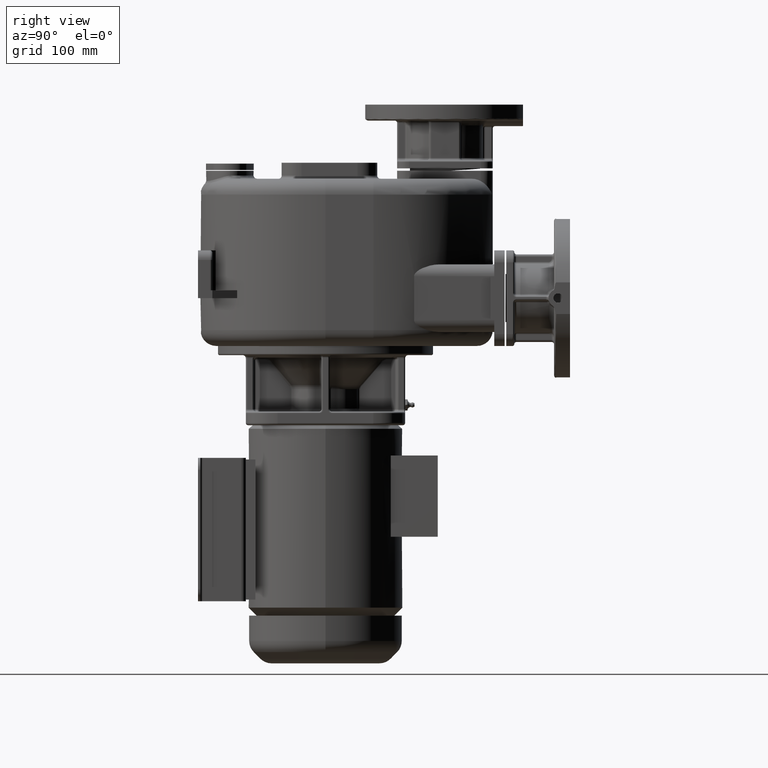
[diagram: clean part render]
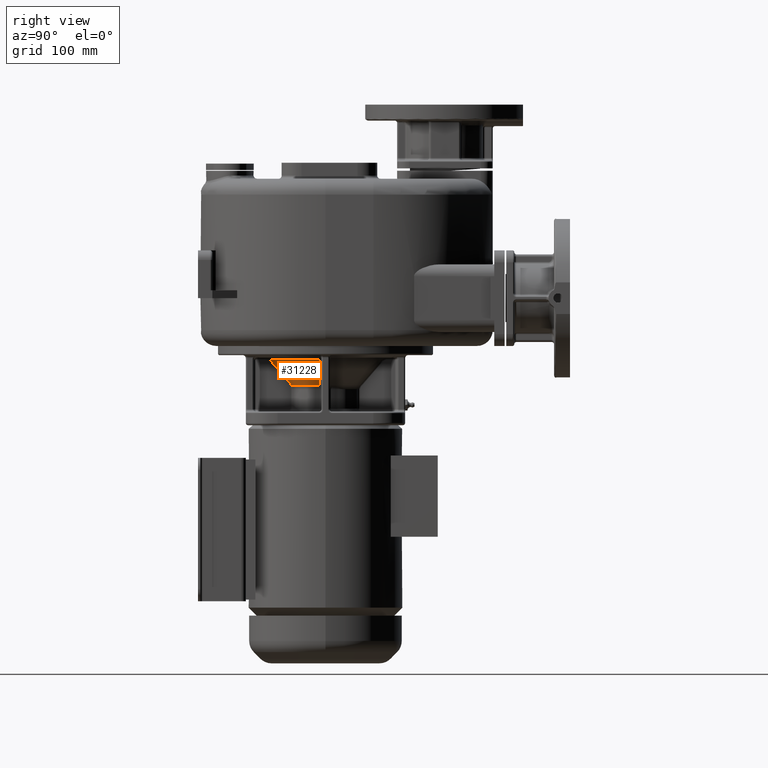
[diagram: same view with one face highlighted and labeled with its STEP entity id]
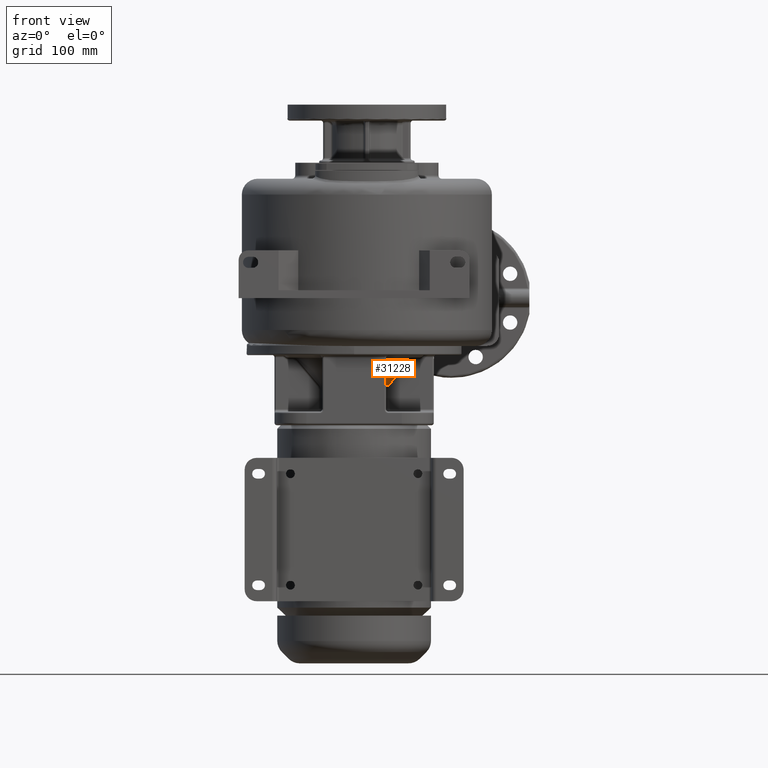
[diagram: same view with one face highlighted and labeled with its STEP entity id]
A machine part, right view. The second image highlights one B-rep face of the part: STEP entity #31228.
A second angle (front view) of the same face is appended — the face is thin or edge-on in the first view.
In plain terms, the highlighted conical surface has half-angle 40 deg.
Its self-contained STEP definition (entity closure, byte-faithful):
#11843=CARTESIAN_POINT('',(1.259244266853E1,-6.988102815378E1,
8.014230087696E1));
#12046=CARTESIAN_POINT('',(7.058241814947E1,-7.749196573001E0,
8.014230033827E1));
#12047=CARTESIAN_POINT('',(6.874542611328E1,-7.742946718381E0,
7.796532171921E1));
#12048=CARTESIAN_POINT('',(6.524888195735E1,-7.730112153623E0,
7.382344325283E1));
#12049=CARTESIAN_POINT('',(6.058015332008E1,-7.710325683125E0,
6.829808209822E1));
#12050=CARTESIAN_POINT('',(5.635660238921E1,-7.689786056632E0,
6.330458663007E1));
#12051=CARTESIAN_POINT('',(5.255405485567E1,-7.668639759416E0,
5.881384982242E1));
#12052=CARTESIAN_POINT('',(4.921580997394E1,-7.647553941387E0,
5.487617996514E1));
#12053=CARTESIAN_POINT('',(4.630603111027E1,-7.626911411868E0,
5.144814389394E1));
#12054=CARTESIAN_POINT('',(4.454305976338E1,-7.612957826245E0,
4.937386278737E1));
#12055=CARTESIAN_POINT('',(4.371487992465E1,-7.606060653074E0,
4.840007642940E1));
#12057=CARTESIAN_POINT('',(0.E0,0.E0,4.840007693842E1));
#12058=DIRECTION('',(0.E0,0.E0,-1.E0));
#12059=DIRECTION('',(9.851985398293E-1,-1.714171435947E-1,0.E0));
#12060=AXIS2_PLACEMENT_3D('',#12057,#12058,#12059);
#12062=CARTESIAN_POINT('',(1.235899883491E1,-4.261570116506E1,
4.840007687841E1));
#12063=CARTESIAN_POINT('',(1.235954856458E1,-4.264475508925E1,
4.843351423741E1));
#12064=CARTESIAN_POINT('',(1.236060006903E1,-4.270297722793E1,
4.850050868647E1));
#12065=CARTESIAN_POINT('',(1.236202958692E1,-4.279041370400E1,
4.860108319476E1));
#12066=CARTESIAN_POINT('',(1.236289143779E1,-4.284925329094E1,
4.866874038722E1));
#12067=CARTESIAN_POINT('',(1.236329871118E1,-4.287877025959E1,
4.870267487381E1));
#12069=CARTESIAN_POINT('',(1.236329871118E1,-4.287877025959E1,
4.870267487381E1));
#12070=CARTESIAN_POINT('',(1.237063016698E1,-4.343893690959E1,
4.934654492779E1));
#12071=CARTESIAN_POINT('',(1.238538467841E1,-4.460388656435E1,
5.068717750141E1));
#12072=CARTESIAN_POINT('',(1.240743343462E1,-4.646971625760E1,
5.283954674623E1));
#12073=CARTESIAN_POINT('',(1.242975534734E1,-4.849999756835E1,
5.518704852680E1));
#12074=CARTESIAN_POINT('',(1.245236380745E1,-5.072000564114E1,
5.775975003398E1));
#12075=CARTESIAN_POINT('',(1.247517879385E1,-5.314816755642E1,
6.057985785703E1));
#12076=CARTESIAN_POINT('',(1.249831053855E1,-5.582944118525E1,
6.370058233827E1));
#12077=CARTESIAN_POINT('',(1.252166660796E1,-5.879210397720E1,
6.715590856422E1));
#12078=CARTESIAN_POINT('',(1.254552047777E1,-6.212505533275E1,
7.105088464838E1));
#12079=CARTESIAN_POINT('',(1.256928206739E1,-6.580740109069E1,
7.536250172178E1));
#12080=CARTESIAN_POINT('',(1.258479881522E1,-6.848543613827E1,
7.850384643519E1));
#12081=CARTESIAN_POINT('',(1.259244266853E1,-6.988102815378E1,
8.014230087696E1));
#12083=CARTESIAN_POINT('',(0.E0,0.E0,8.014230087749E1));
#12084=DIRECTION('',(0.E0,0.E0,-1.E0));
#12085=DIRECTION('',(9.940270940251E-1,-1.091335711136E-1,0.E0));
#12086=AXIS2_PLACEMENT_3D('',#12083,#12084,#12085);
#12098=CARTESIAN_POINT('',(4.371487992465E1,-7.606060653074E0,
4.840007642940E1));
#16578=VERTEX_POINT('',#11843);
#16580=VERTEX_POINT('',#12069);
#16582=VERTEX_POINT('',#12062);
#16929=VERTEX_POINT('',#12098);
#16931=VERTEX_POINT('',#12046);
#31214=CARTESIAN_POINT('',(0.E0,0.E0,6.427118890796E1));
#31215=DIRECTION('',(0.E0,0.E0,1.E0));
#31216=DIRECTION('',(0.E0,-1.E0,0.E0));
#31217=AXIS2_PLACEMENT_3D('',#31214,#31215,#31216);
#31218=CONICAL_SURFACE('',#31217,5.768908865506E1,4.E1);
#31220=ORIENTED_EDGE('',*,*,#31219,.T.);
#31222=ORIENTED_EDGE('',*,*,#31221,.T.);
#31223=ORIENTED_EDGE('',*,*,#31102,.T.);
#31224=ORIENTED_EDGE('',*,*,#31168,.T.);
#31225=ORIENTED_EDGE('',*,*,#30814,.F.);
#31226=EDGE_LOOP('',(#31220,#31222,#31223,#31224,#31225));
#31227=FACE_OUTER_BOUND('',#31226,.F.);
#31228=ADVANCED_FACE('',(#31227),#31218,.T.);
#12056=B_SPLINE_CURVE_WITH_KNOTS('',3,(#12046,#12047,#12048,#12049,#12050,
#12051,#12052,#12053,#12054,#12055),.UNSPECIFIED.,.F.,.F.,(4,1,1,1,1,1,1,4),(
0.E0,1.428571428571E-1,2.857142857143E-1,4.285714285714E-1,5.714285714286E-1,
7.142857142857E-1,8.571428571429E-1,1.E0),.UNSPECIFIED.);
#12061=CIRCLE('',#12060,4.437164445505E1);
#12068=B_SPLINE_CURVE_WITH_KNOTS('',3,(#12062,#12063,#12064,#12065,#12066,
#12067),.UNSPECIFIED.,.F.,.F.,(4,1,1,4),(0.E0,3.333333333333E-1,
6.666666666667E-1,1.E0),.UNSPECIFIED.);
#12082=B_SPLINE_CURVE_WITH_KNOTS('',3,(#12069,#12070,#12071,#12072,#12073,
#12074,#12075,#12076,#12077,#12078,#12079,#12080,#12081),.UNSPECIFIED.,.F.,.F.,(
4,1,1,1,1,1,1,1,1,1,4),(0.E0,1.E-1,2.E-1,3.E-1,4.E-1,5.E-1,6.E-1,7.E-1,8.E-1,
9.E-1,1.E0),.UNSPECIFIED.);
#12087=CIRCLE('',#12086,7.100653285507E1);
#30814=EDGE_CURVE('',#16931,#16578,#12087,.T.);
#31102=EDGE_CURVE('',#16582,#16580,#12068,.T.);
#31168=EDGE_CURVE('',#16580,#16578,#12082,.T.);
#31219=EDGE_CURVE('',#16931,#16929,#12056,.T.);
#31221=EDGE_CURVE('',#16929,#16582,#12061,.T.);